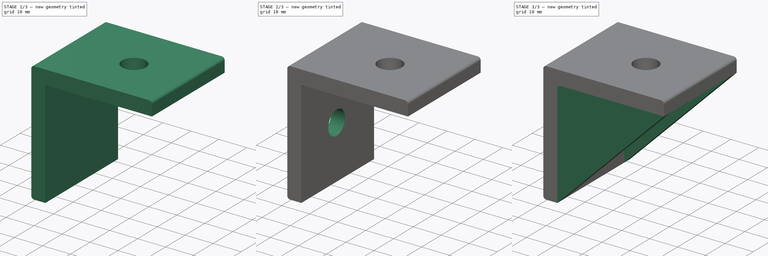
[diagram: build sequence overview — one tinted view per stage of 3, left to right]
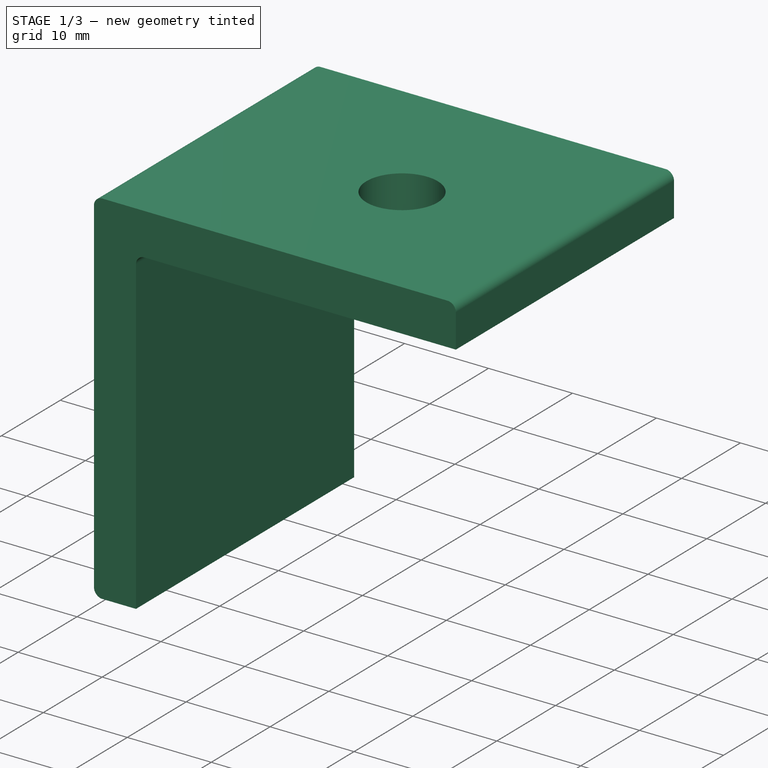
[diagram: stage 1 of 3 — iso view after this stage's code; geometry added in this stage tinted green]
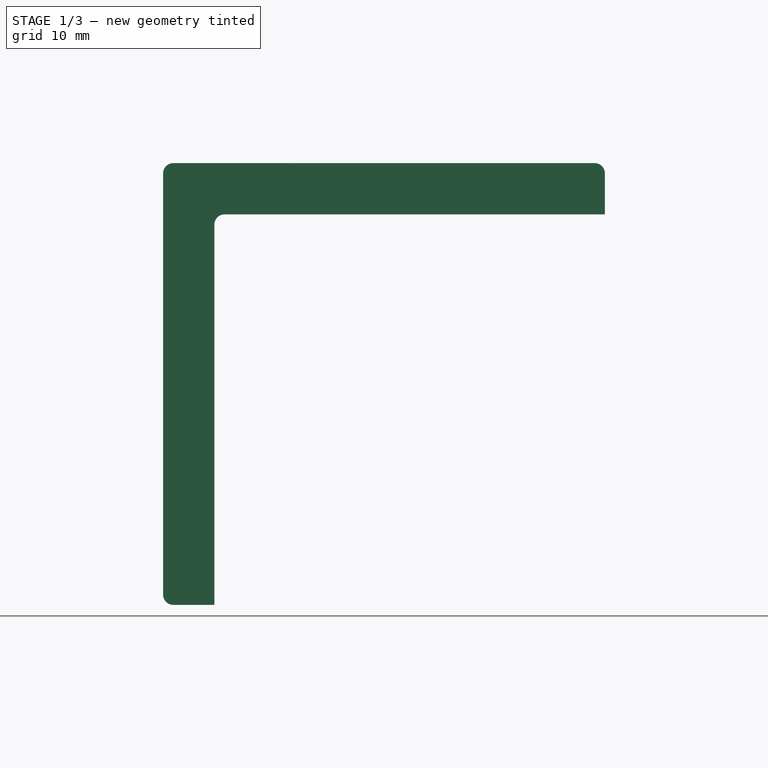
[diagram: stage 1 of 3 — front view after this stage's code; geometry added in this stage tinted green]
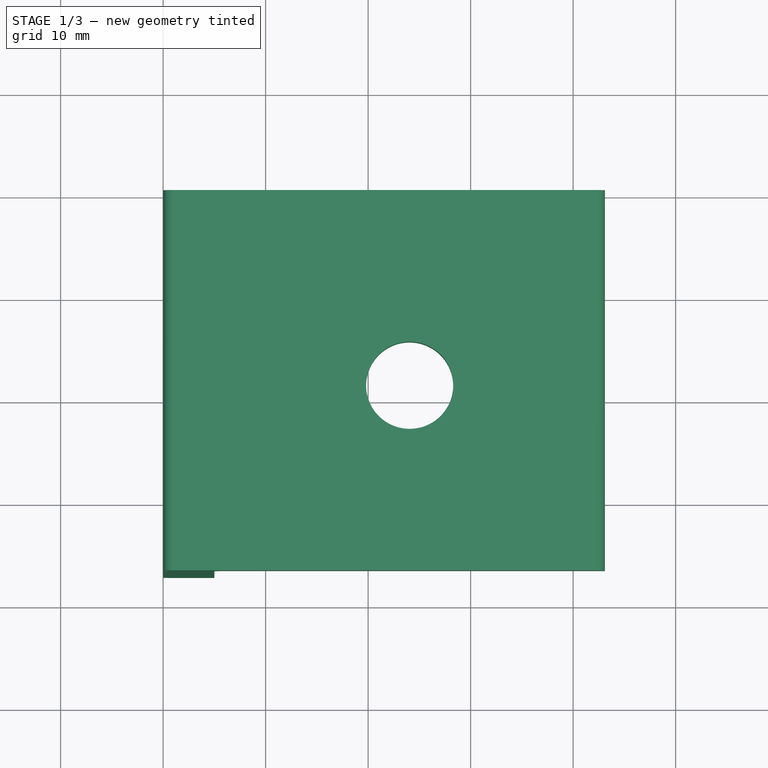
[diagram: stage 1 of 3 — top view after this stage's code; geometry added in this stage tinted green]
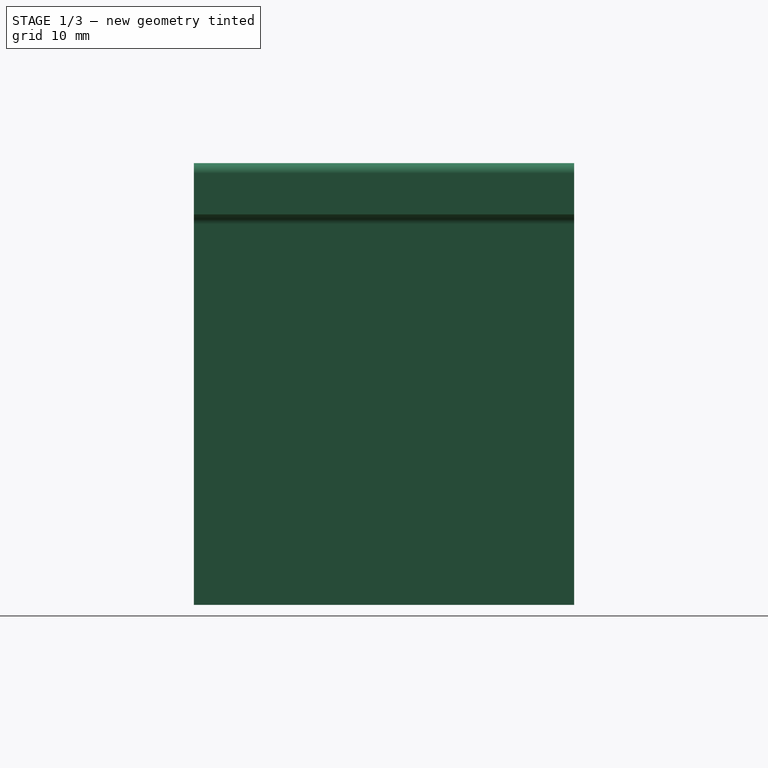
[diagram: stage 1 of 3 — right view after this stage's code; geometry added in this stage tinted green]
FCSTD DOCUMENT  (FreeCAD 0.18R)
Label: corner-gusset
License: All rights reserved
LicenseURL: http://en.wikipedia.org/wiki/All_rights_reserved
objects: Sketcher::SketchObject×5, PartDesign::Pad×3, PartDesign::Pocket×2, PartDesign::Body×1
note: 16 computed .brp shape members not serialized (recipe doc carries the construction recipe); baked Part::Feature solids carry a one-line shape summary decoded from their .brp

FEATURE [Sketcher::SketchObject] Sketch001
  MapMode = 5
  Placement = pos=(0,0,0) rot=(1,0,0;1.5708rad)
  Support = -> [XZ_Plane]
  sketch-geometry (10):
    g0: LineSegment StartX=1 StartY=43.1 StartZ=0 EndX=42.1 EndY=43.1 EndZ=0
    g1: LineSegment StartX=43.1 StartY=38.1 StartZ=0 EndX=6 EndY=38.1 EndZ=0
    g2: LineSegment StartX=0 StartY=42.1 StartZ=0 EndX=0 EndY=1 EndZ=0
    g3: LineSegment StartX=5 StartY=37.1 StartZ=0 EndX=5 EndY=0 EndZ=0
    g4: ArcOfCircle CenterX=1 CenterY=42.1 CenterZ=0 NormalX=0 NormalY=0 NormalZ=1 AngleXU=0 Radius=1 StartAngle=1.5708 EndAngle=3.14159
    g5: ArcOfCircle CenterX=6 CenterY=37.1 CenterZ=0 NormalX=0 NormalY=0 NormalZ=1 AngleXU=0 Radius=1 StartAngle=1.5708 EndAngle=3.14159
    g6: LineSegment StartX=43.1 StartY=38.1 StartZ=0 EndX=43.1 EndY=42.1 EndZ=0
    g7: ArcOfCircle CenterX=42.1 CenterY=42.1 CenterZ=0 NormalX=0 NormalY=0 NormalZ=1 AngleXU=0 Radius=1 StartAngle=-2.7e-15 EndAngle=1.5708
    g8: LineSegment StartX=1 StartY=0 StartZ=0 EndX=5 EndY=0 EndZ=0
    g9: ArcOfCircle CenterX=1 CenterY=1 CenterZ=0 NormalX=0 NormalY=0 NormalZ=1 AngleXU=0 Radius=1 StartAngle=3.14159 EndAngle=4.71239
  constraints (26):
    c: Horizontal(g0)
    c: Horizontal(g1)
    c: Vertical(g2)
    c: Vertical(g3)
    c: Tangent(g0,g4) = 1.5708
    c: Tangent(g2,g4) = -1.5708
    c: Tangent(g1,g5) = -1.5708
    c: Tangent(g3,g5) = -1.5708
    c: Vertical(g6)
    c: Tangent(g0,g7) = 1.5708
    c: Tangent(g6,g7) = -1.5708
    c: DistanceX(g7,g6) = 1
    c: DistanceX(g3,g5) = 1
    c: DistanceX(g2,g4) = 1
    c: Horizontal(g8)
    c: Tangent(g2,g9) = -1.5708
    c: Tangent(g8,g9) = -1.5708
    c: DistanceX(g2,g9) = 1
    c: DistanceX(g2,g-1) = 0
    c: DistanceX(g2,g3) = 5
    c: DistanceY(g1,g0) = 5
    c: DistanceY(g-1,g8) = 0
    c: DistanceX(g3,g6) = 38.1
    c: DistanceY(g-1,g1) = 38.1
    c: Coincident(g6,g1)
    c: Coincident(g3,g8)
FEATURE [PartDesign::Pad] Pad001
  Length = 37.1
  Length2 = 100
  Placement = pos=(0,0,0) rot=(1,0,0;1.5708rad)
  Profile = -> Sketch001
  Type = 0
FEATURE [Sketcher::SketchObject] Sketch
  MapMode = 5
  Support = -> [XY_Plane]
  sketch-geometry (1):
    g0: Circle CenterX=24.05 CenterY=-19.05 CenterZ=0 NormalX=0 NormalY=0 NormalZ=1 AngleXU=0 Radius=4.25
  constraints (3):
    c: Diameter(g0) = 8.5
    c: DistanceX(g-1,g0) = 24.05
    c: DistanceY(g0,g-1) = 19.05
FEATURE [PartDesign::Pocket] Pocket
  BaseFeature = -> Pad001
  Length = 5
  Length2 = 100
  Placement = pos=(0,0,0) rot=(1,0,0;1.5708rad)
  Profile = -> Sketch
  Reversed = true
  Type = 1
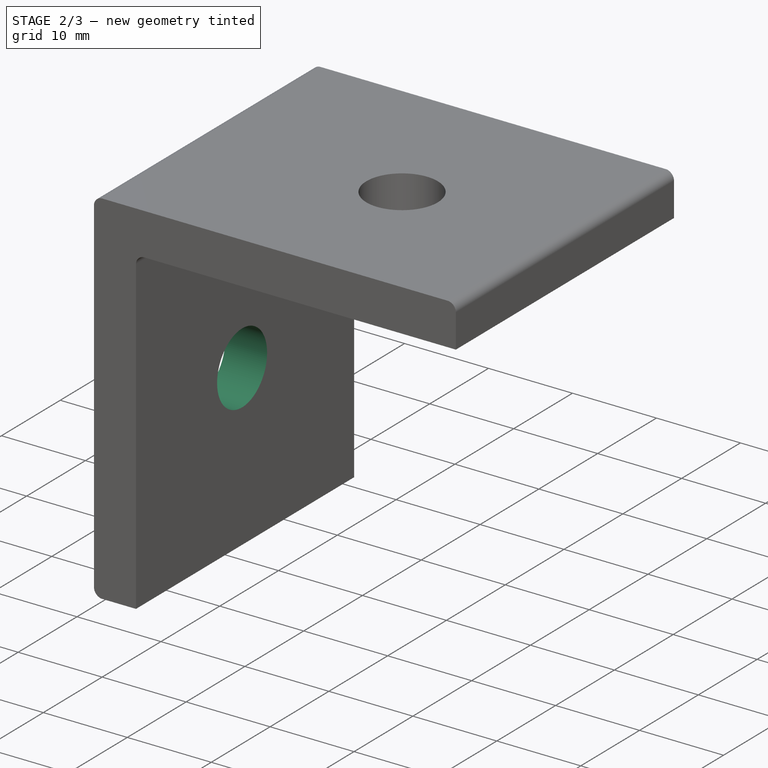
[diagram: stage 2 of 3 — iso view after this stage's code; geometry added in this stage tinted green]
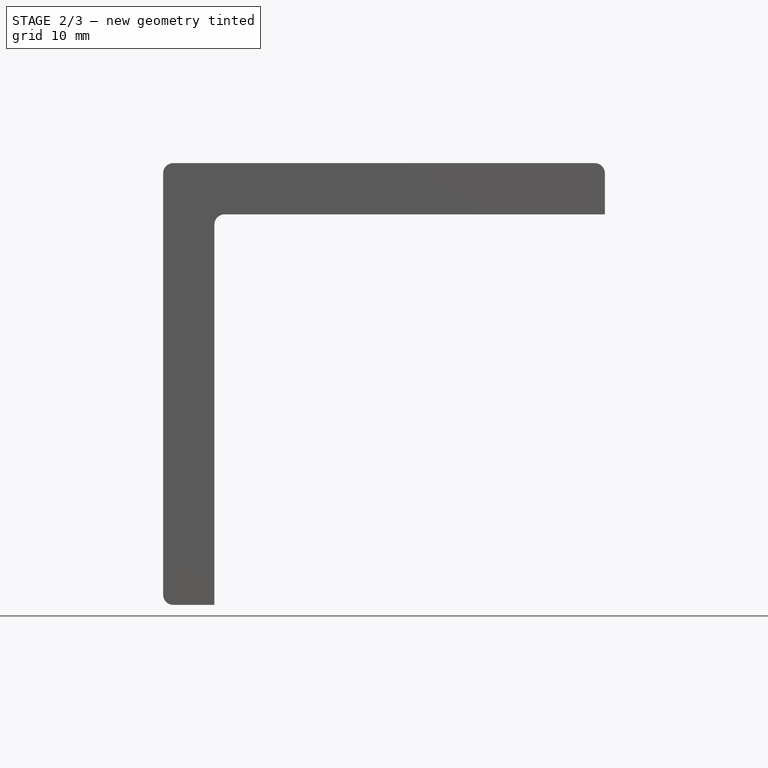
[diagram: stage 2 of 3 — front view after this stage's code; geometry added in this stage tinted green]
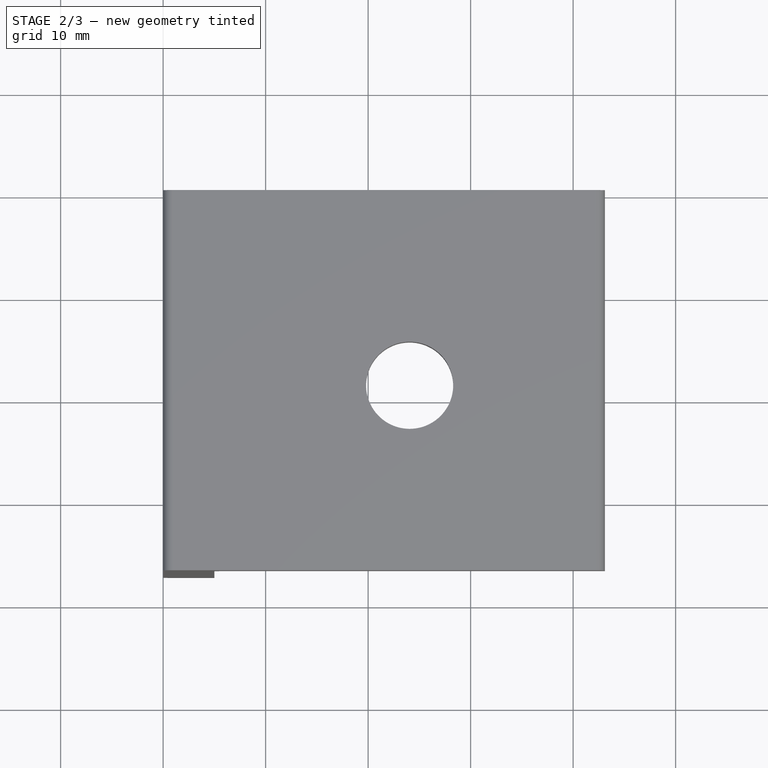
[diagram: stage 2 of 3 — top view after this stage's code; geometry added in this stage tinted green]
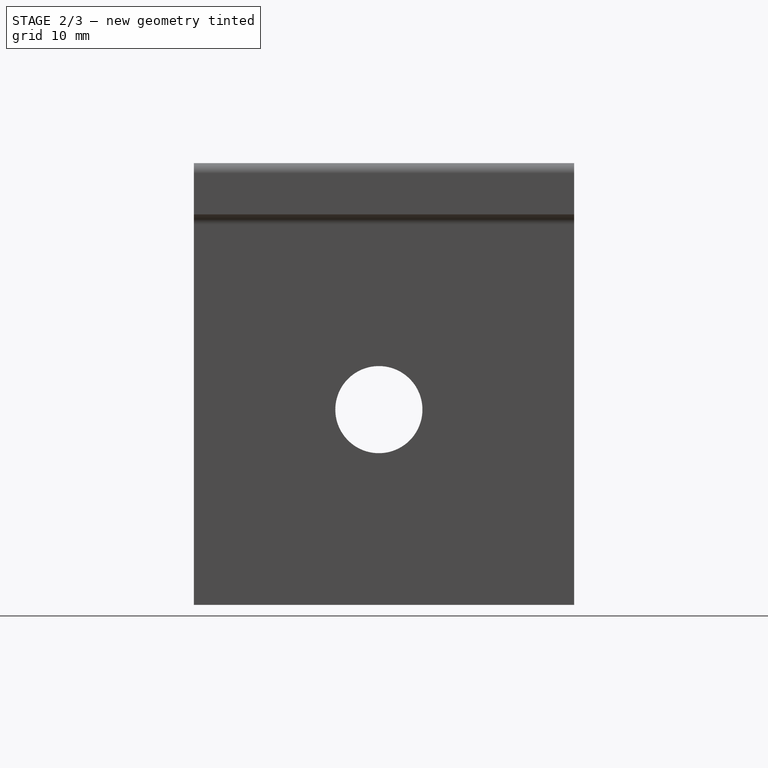
[diagram: stage 2 of 3 — right view after this stage's code; geometry added in this stage tinted green]
FEATURE [Sketcher::SketchObject] Sketch002
  MapMode = 5
  Placement = pos=(0,0,0) rot=(0.57735,0.57735,0.57735;2.0944rad)
  Support = -> [YZ_Plane]
  sketch-geometry (1):
    g0: Circle CenterX=-19.05 CenterY=19.05 CenterZ=0 NormalX=0 NormalY=0 NormalZ=1 AngleXU=0 Radius=4.25
  constraints (3):
    c: Diameter(g0) = 8.5
    c: DistanceX(g0,g-1) = 19.05
    c: DistanceY(g-1,g0) = 19.05
FEATURE [PartDesign::Pocket] Pocket001
  BaseFeature = -> Pocket
  Length = 5
  Length2 = 100
  Placement = pos=(0,0,0) rot=(1,0,0;1.5708rad)
  Profile = -> Sketch002
  Reversed = true
  Type = 1
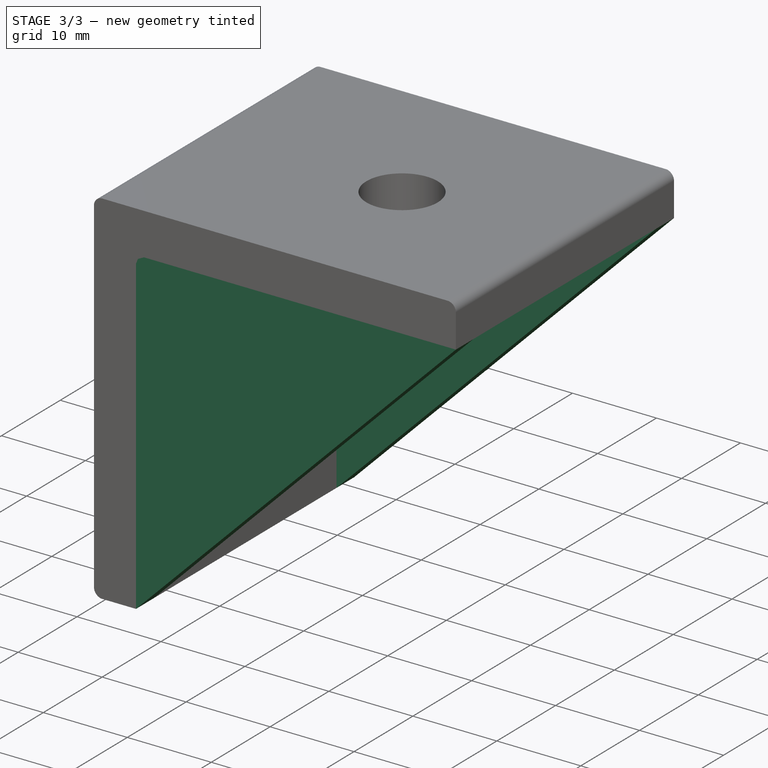
[diagram: stage 3 of 3 — iso view after this stage's code; geometry added in this stage tinted green]
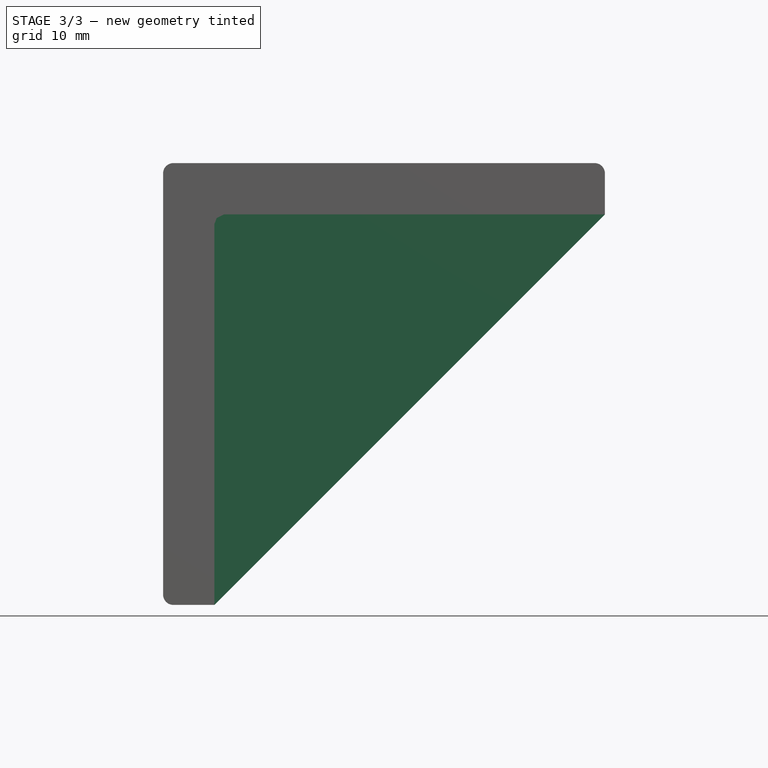
[diagram: stage 3 of 3 — front view after this stage's code; geometry added in this stage tinted green]
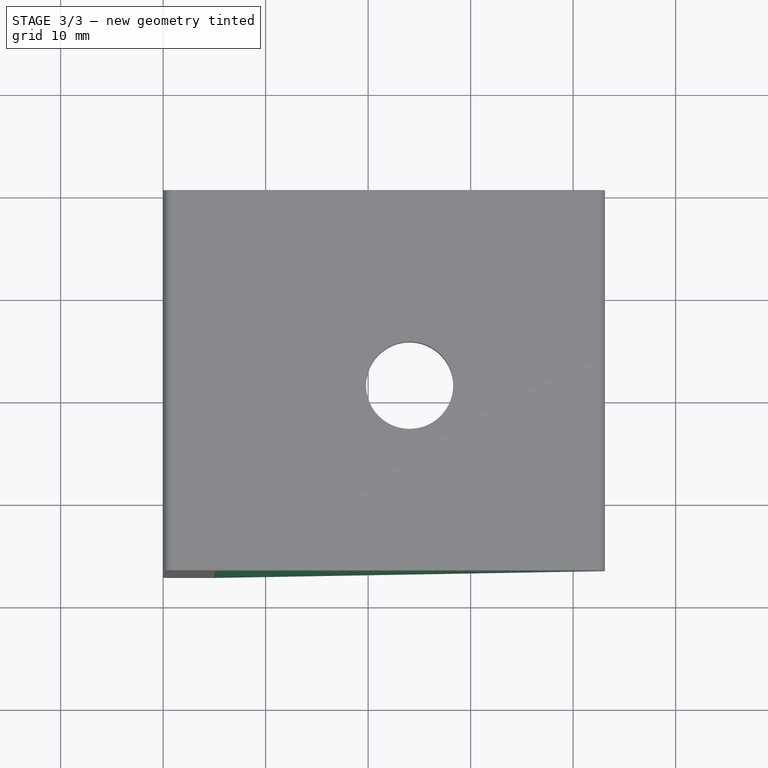
[diagram: stage 3 of 3 — top view after this stage's code; geometry added in this stage tinted green]
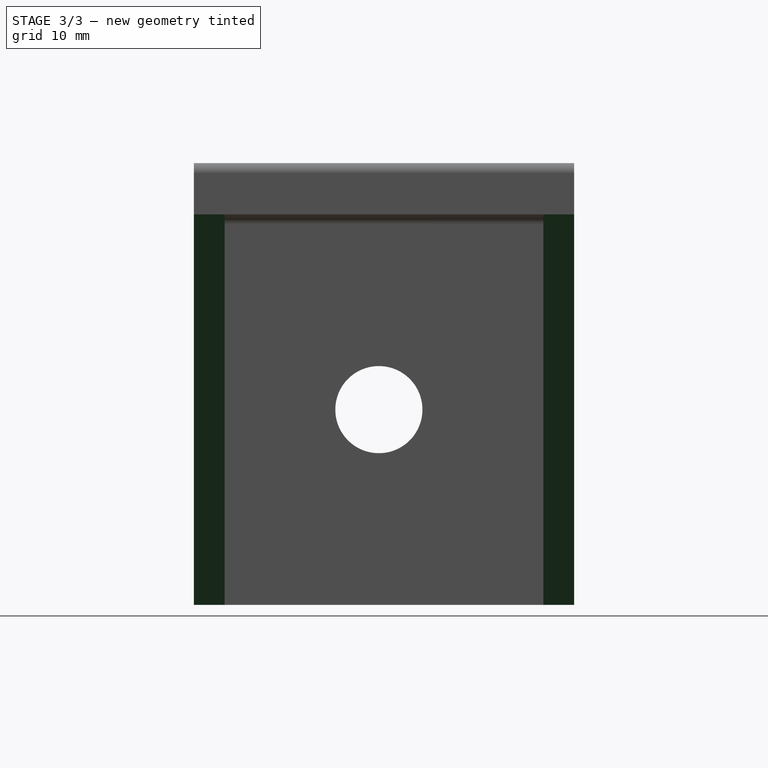
[diagram: stage 3 of 3 — right view after this stage's code; geometry added in this stage tinted green]
FEATURE [Sketcher::SketchObject] Sketch003
  MapMode = 5
  Placement = pos=(0,0,0) rot=(1,0,0;1.5708rad)
  Support = -> [XZ_Plane]
  sketch-geometry (3):
    g0: LineSegment StartX=5 StartY=0 StartZ=0 EndX=43.1 EndY=38.1 EndZ=0
    g1: LineSegment StartX=43.1 StartY=38.1 StartZ=0 EndX=5 EndY=38.1 EndZ=0
    g2: LineSegment StartX=5 StartY=38.1 StartZ=0 EndX=5 EndY=0 EndZ=0
  constraints (9):
    c: DistanceX(g-1,g0) = 5
    c: DistanceX(g-1,g0) = 43.1
    c: DistanceY(g-1,g0) = 38.1
    c: Horizontal(g1)
    c: Coincident(g2,g0)
    c: Vertical(g2)
    c: Coincident(g1,g2)
    c: Coincident(g0,g1)
    c: PointOnObject(g0,g-1)
FEATURE [PartDesign::Pad] Pad
  BaseFeature = -> Pocket001
  Length = 3
  Length2 = 100
  Placement = pos=(0,0,0) rot=(1,0,0;1.5708rad)
  Profile = -> Sketch003
  Type = 0
FEATURE [Sketcher::SketchObject] Sketch004
  AttachmentOffset = pos=(0,0,34.1) rot=(0,0,1;0rad)
  MapMode = 5
  Placement = pos=(0,-34.1,7.6e-15) rot=(1,0,0;1.5708rad)
  Support = -> [XZ_Plane]
  sketch-geometry (3):
    g0: LineSegment StartX=5 StartY=0 StartZ=0 EndX=43.1 EndY=38.1 EndZ=0
    g1: LineSegment StartX=43.1 StartY=38.1 StartZ=0 EndX=5 EndY=38.1 EndZ=0
    g2: LineSegment StartX=5 StartY=38.1 StartZ=0 EndX=5 EndY=0 EndZ=0
  constraints (9):
    c: DistanceX(g-1,g0) = 5
    c: DistanceX(g-1,g0) = 43.1
    c: DistanceY(g-1,g0) = 38.1
    c: Horizontal(g1)
    c: Coincident(g2,g0)
    c: Vertical(g2)
    c: Coincident(g1,g2)
    c: Coincident(g0,g1)
    c: PointOnObject(g0,g-1)
FEATURE [PartDesign::Pad] Pad002
  BaseFeature = -> Pad
  Length = 3
  Length2 = 100
  Placement = pos=(0,0,0) rot=(1,0,0;1.5708rad)
  Profile = -> Sketch004
  Type = 0
FEATURE [PartDesign::Body] Body  label="corner-gusset"
  Group = -> [Sketch001,Pad001,Sketch,Pocket,Sketch002,Pocket001,Sketch003,Pad,Sketch004,Pad002]
  Origin = -> Origin
  Tip = -> Pad002
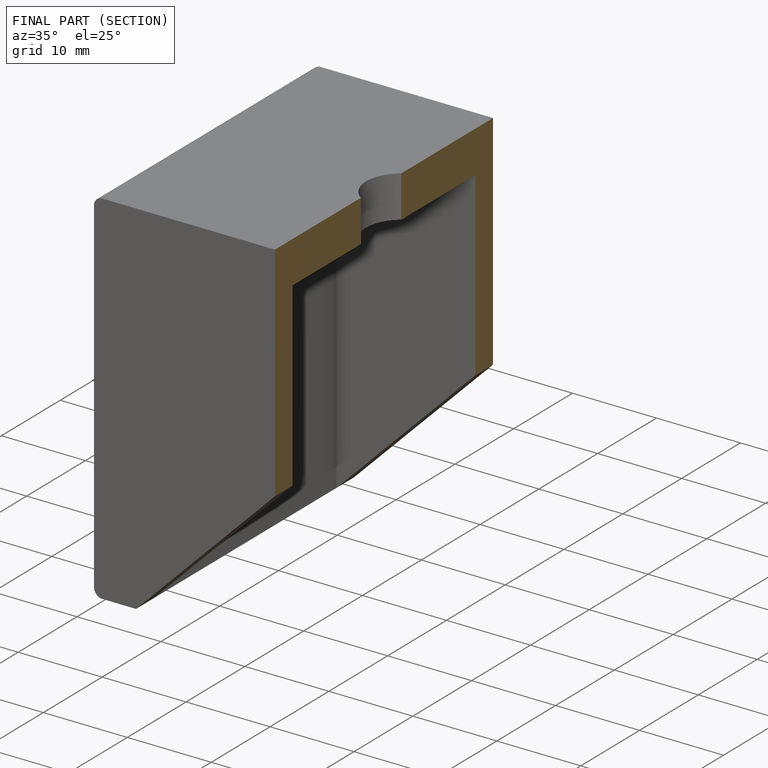
[diagram: finished part — half-section view (interior)]
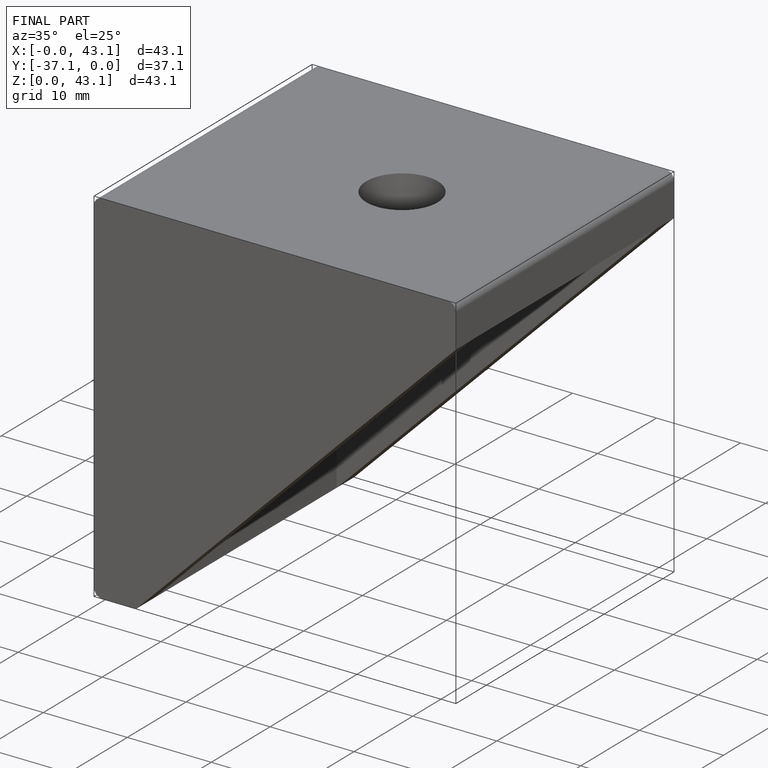
[diagram: finished part — iso view with bounding-box wireframe]
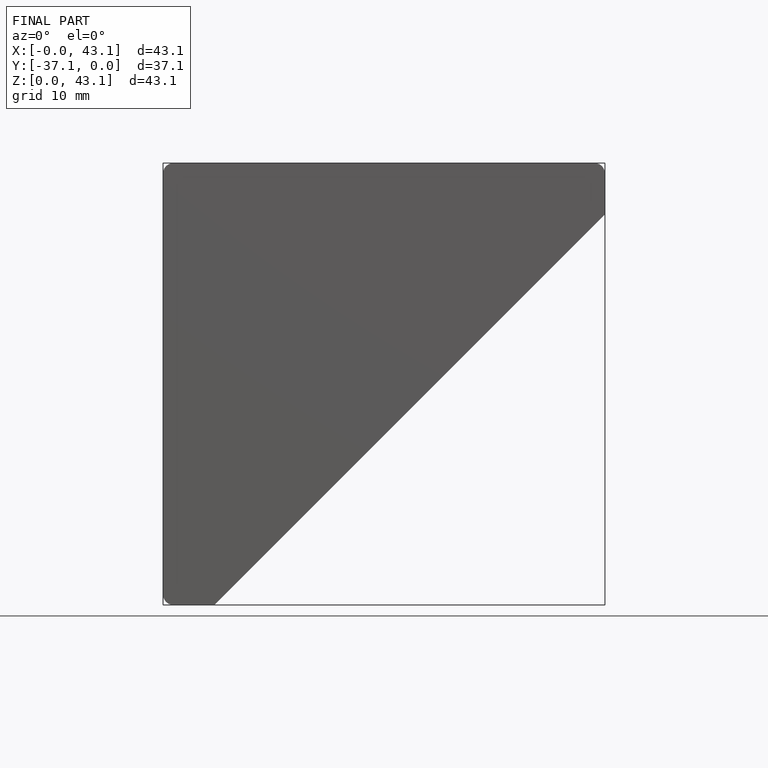
[diagram: finished part — front view with bounding-box wireframe]
